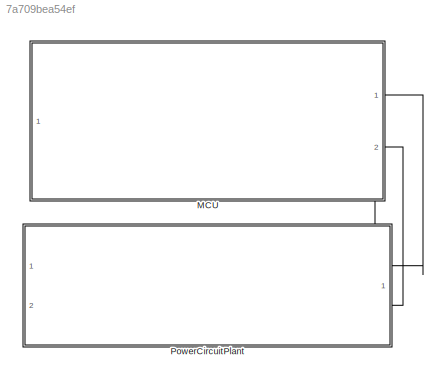
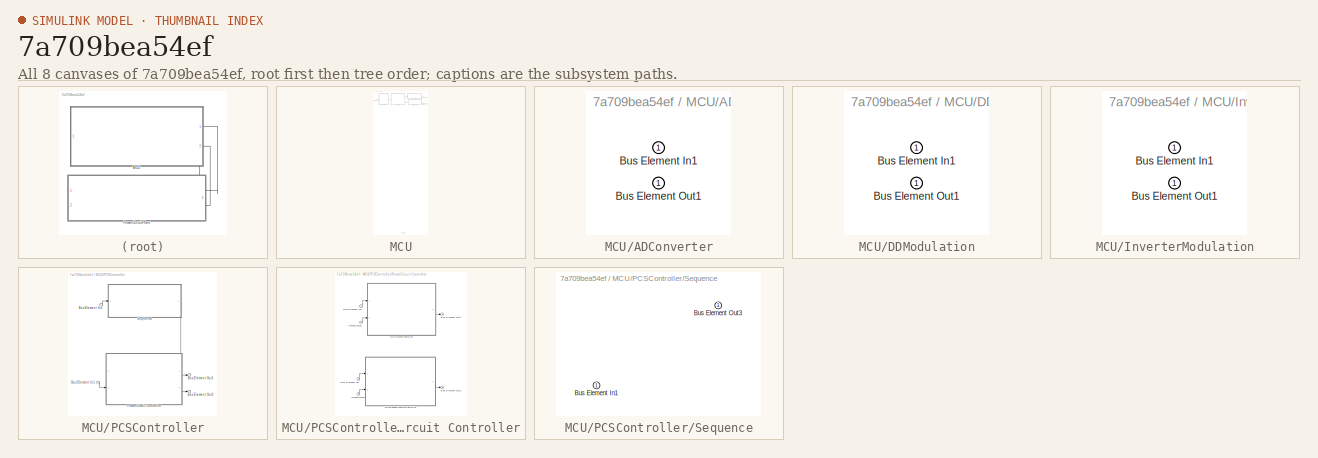
[diagram: thumbnail index - all 8 canvases of the model, root first then tree order]
MODEL slx_7a709bea54ef
KIND model
CONFIG AbsTol = auto
CONFIG EnableMultiTasking = off
CONFIG FixedStep = auto
CONFIG MaxStep = auto
CONFIG MinStep = auto
CONFIG RelTol = 1e-3
CONFIG SampleTimeConstraint = Unconstrained
CONFIG Solver = VariableStepAuto
CONFIG SolverName = VariableStepAuto
CONFIG StartTime = 0.0
CONFIG StopTime = 10.0
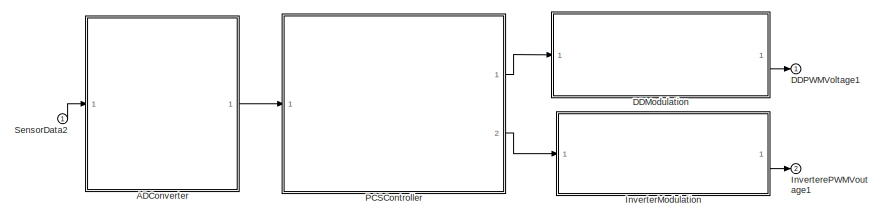
[diagram: MCU - part 1/2, full width, top band]
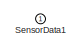
[diagram: MCU - part 2/2, bottom center region]
BLOCK [SubSystem] MCU
  PortSchema = {"entries":[{"content":{"headerSize":26,"margin":15,"minimumSpacing":25,"sides":[{"content":{"connectorIds":["In1"]},"type":"ConnectorPlacement.EquallySpacedRectSide","uuid":"c82d45af-5ea8-4fcc-ae89-844168bd57bc"},{"content":{"connectorIds":["Out1","Out2"],"side":"RIGHT"},"type":"ConnectorPlacement.EquallySpacedRectSide","uuid":"1b4d3c0c-1c26-4c41-b646-659636f5825f"},{"content":{"connectorIds":[],...<+297ch>
  Ports = [1, 2]
  RequestExecContextInheritance = off
BLOCK [SubSystem] MCU/ADConverter
  PortSchema = {"entries":[{"content":{"headerSize":26,"margin":15,"minimumSpacing":25,"sides":[{"content":{"connectorIds":["In1"]},"type":"ConnectorPlacement.EquallySpacedRectSide","uuid":"dd7087ea-aa8d-4c9c-952a-816553f34dda"},{"content":{"connectorIds":["Out1"],"side":"RIGHT"},"type":"ConnectorPlacement.EquallySpacedRectSide","uuid":"25abe4c7-a50d-4c81-9684-6198eef28952"},{"content":{"connectorIds":[],"side":...<+434ch>
  Ports = [1, 1]
  RequestExecContextInheritance = off
BLOCK [Inport] MCU/ADConverter/Bus Element In1
BLOCK [Outport] MCU/ADConverter/Bus Element Out1
BLOCK [SubSystem] MCU/DDModulation
  PortSchema = {"entries":[{"content":{"headerSize":26,"margin":15,"minimumSpacing":25,"sides":[{"content":{"connectorIds":["In1"]},"type":"ConnectorPlacement.EquallySpacedRectSide","uuid":"4a276d0d-1e61-4fe0-a236-83af253ddea3"},{"content":{"connectorIds":["Out1"],"side":"RIGHT"},"type":"ConnectorPlacement.EquallySpacedRectSide","uuid":"2cace6bb-f607-4cf0-88cb-c27cbcb348d0"},{"content":{"connectorIds":[],"side":...<+290ch>
  Ports = [1, 1]
  RequestExecContextInheritance = off
BLOCK [Inport] MCU/DDModulation/Bus Element In1
BLOCK [Outport] MCU/DDModulation/Bus Element Out1
BLOCK [Outport] MCU/DDPWMVoltage1
BLOCK [SubSystem] MCU/InverterModulation
  PortSchema = {"entries":[{"content":{"headerSize":26,"margin":15,"minimumSpacing":25,"sides":[{"content":{"connectorIds":["In1"]},"type":"ConnectorPlacement.EquallySpacedRectSide","uuid":"4a276d0d-1e61-4fe0-a236-83af253ddea3"},{"content":{"connectorIds":["Out1"],"side":"RIGHT"},"type":"ConnectorPlacement.EquallySpacedRectSide","uuid":"2cace6bb-f607-4cf0-88cb-c27cbcb348d0"},{"content":{"connectorIds":[],"side":...<+290ch>
  Ports = [1, 1]
  RequestExecContextInheritance = off
BLOCK [Inport] MCU/InverterModulation/Bus Element In1
BLOCK [Outport] MCU/InverterModulation/Bus Element Out1
BLOCK [Outport] MCU/InverterePWMVoutage1
  Port = 2
BLOCK [SubSystem] MCU/PCSController
  PortSchema = {"entries":[{"content":{"headerSize":26,"margin":15,"minimumSpacing":25,"sides":[{"content":{"connectorIds":["In1"]},"type":"ConnectorPlacement.EquallySpacedRectSide","uuid":"9796e929-be55-42a1-ab24-30bc555d00ea"},{"content":{"connectorIds":["Out1","Out2"],"side":"RIGHT"},"type":"ConnectorPlacement.EquallySpacedRectSide","uuid":"a0e2ec08-d94c-41f4-8573-1de63b77b3ef"},{"content":{"connectorIds":[],...<+441ch>
  Ports = [1, 2]
  RequestExecContextInheritance = off
BLOCK [Inport] MCU/PCSController/Bus Element In1
BLOCK [Inport] MCU/PCSController/Bus Element In2
BLOCK [Outport] MCU/PCSController/Bus Element Out1
BLOCK [Outport] MCU/PCSController/Bus Element Out2
  Port = 2
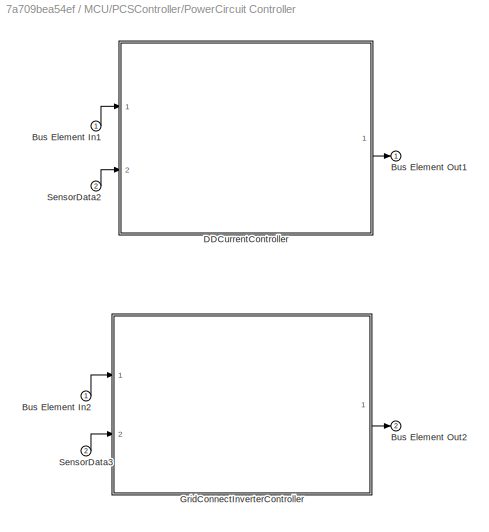
BLOCK [SubSystem] MCU/PCSController/PowerCircuit Controller
  PortSchema = {"entries":[{"content":{"headerSize":26,"margin":15,"minimumSpacing":25,"sides":[{"content":{"connectorIds":["In2"]},"type":"ConnectorPlacement.EquallySpacedRectSide","uuid":"6d5a3475-51d4-4fed-a4a1-1c259683418a"},{"content":{"connectorIds":["Out1","Out2"],"side":"RIGHT"},"type":"ConnectorPlacement.EquallySpacedRectSide","uuid":"687f9b37-d781-487a-8ccc-4d9d98ae2b03"},{"content":{"connectorIds":["I...<+302ch>
  Ports = [2, 2]
  RequestExecContextInheritance = off
BLOCK [Inport] MCU/PCSController/PowerCircuit Controller/Bus Element In1
BLOCK [Inport] MCU/PCSController/PowerCircuit Controller/Bus Element In2
BLOCK [Outport] MCU/PCSController/PowerCircuit Controller/Bus Element Out1
BLOCK [Outport] MCU/PCSController/PowerCircuit Controller/Bus Element Out2
  Port = 2
BLOCK [ModelReference] MCU/PCSController/PowerCircuit Controller/DDCurrentController
  ModelNameDialog = DDCurrentController
  ModelReferenceVersion = 1.1
  PortSchema = {"entries":[{"content":{"headerSize":38,"margin":15,"minimumSpacing":25,"sides":[{"content":{"connectorIds":["In1","In2"]},"type":"ConnectorPlacement.EquallySpacedRectSide","uuid":"9796e929-be55-42a1-ab24-30bc555d00ea"},{"content":{"connectorIds":["Out1"],"side":"RIGHT"},"type":"ConnectorPlacement.EquallySpacedRectSide","uuid":"a0e2ec08-d94c-41f4-8573-1de63b77b3ef"},{"content":{"connectorIds":[],"...<+296ch>
  Ports = [2, 1]
BLOCK [ModelReference] MCU/PCSController/PowerCircuit Controller/GridConnectInverterController
  ModelNameDialog = GridConnectInverterController
  ModelReferenceVersion = 1.1
  PortSchema = {"entries":[{"content":{"headerSize":38,"margin":15,"minimumSpacing":25,"sides":[{"content":{"connectorIds":["In1","In2"]},"type":"ConnectorPlacement.EquallySpacedRectSide","uuid":"9796e929-be55-42a1-ab24-30bc555d00ea"},{"content":{"connectorIds":["Out1"],"side":"RIGHT"},"type":"ConnectorPlacement.EquallySpacedRectSide","uuid":"a0e2ec08-d94c-41f4-8573-1de63b77b3ef"},{"content":{"connectorIds":[],"...<+296ch>
  Ports = [2, 1]
BLOCK [Inport] MCU/PCSController/PowerCircuit Controller/SensorData2
  Port = 2
BLOCK [Inport] MCU/PCSController/PowerCircuit Controller/SensorData3
  Port = 2
BLOCK [SubSystem] MCU/PCSController/Sequence
  PortSchema = {"entries":[{"content":{"headerSize":26,"margin":15,"minimumSpacing":25,"sides":[{"content":{"connectorIds":["In1"]},"type":"ConnectorPlacement.EquallySpacedRectSide","uuid":"9796e929-be55-42a1-ab24-30bc555d00ea"},{"content":{"connectorIds":[],"side":"RIGHT"},"type":"ConnectorPlacement.EquallySpacedRectSide","uuid":"a0e2ec08-d94c-41f4-8573-1de63b77b3ef"},{"content":{"connectorIds":[],"side":"TOP"}...<+434ch>
  Ports = [1, 1]
  RequestExecContextInheritance = off
BLOCK [Inport] MCU/PCSController/Sequence/Bus Element In1
BLOCK [Outport] MCU/PCSController/Sequence/Bus Element Out3
BLOCK [Inport] MCU/SensorData1
BLOCK [Inport] MCU/SensorData2
BLOCK [ModelReference] PowerCircuitPlant
  ModelNameDialog = PowerCircuitPlant
  ModelReferenceVersion = 1.26
  PortSchema = {"entries":[{"content":{"headerSize":38,"margin":15,"minimumSpacing":25,"sides":[{"content":{"connectorIds":["Out1"]},"type":"ConnectorPlacement.EquallySpacedRectSide","uuid":"9796e929-be55-42a1-ab24-30bc555d00ea"},{"content":{"connectorIds":["In1","In2"],"side":"RIGHT"},"type":"ConnectorPlacement.EquallySpacedRectSide","uuid":"a0e2ec08-d94c-41f4-8573-1de63b77b3ef"},{"content":{"connectorIds":[],"...<+296ch>
  Ports = [2, 1]
LINE MCU/ADConverter:1 -> MCU/PCSController:1
LINE MCU/DDModulation:1 -> MCU/DDPWMVoltage1:1
LINE MCU/InverterModulation:1 -> MCU/InverterePWMVoutage1:1
LINE MCU/PCSController/Bus Element In1:1 -> MCU/PCSController/PowerCircuit Controller:2
LINE MCU/PCSController/Bus Element In2:1 -> MCU/PCSController/Sequence:1
LINE MCU/PCSController/PowerCircuit Controller/Bus Element In1:1 -> MCU/PCSController/PowerCircuit Controller/DDCurrentController:1
LINE MCU/PCSController/PowerCircuit Controller/Bus Element In2:1 -> MCU/PCSController/PowerCircuit Controller/GridConnectInverterController:1
LINE MCU/PCSController/PowerCircuit Controller/DDCurrentController:1 -> MCU/PCSController/PowerCircuit Controller/Bus Element Out1:1
LINE MCU/PCSController/PowerCircuit Controller/GridConnectInverterController:1 -> MCU/PCSController/PowerCircuit Controller/Bus Element Out2:1
LINE MCU/PCSController/PowerCircuit Controller/SensorData2:1 -> MCU/PCSController/PowerCircuit Controller/DDCurrentController:2
LINE MCU/PCSController/PowerCircuit Controller/SensorData3:1 -> MCU/PCSController/PowerCircuit Controller/GridConnectInverterController:2
LINE MCU/PCSController/PowerCircuit Controller:1 -> MCU/PCSController/Bus Element Out1:1
LINE MCU/PCSController/PowerCircuit Controller:2 -> MCU/PCSController/Bus Element Out2:1
LINE MCU/PCSController/Sequence:1 -> MCU/PCSController/PowerCircuit Controller:1
LINE MCU/PCSController:1 -> MCU/DDModulation:1
LINE MCU/PCSController:2 -> MCU/InverterModulation:1
LINE MCU/SensorData2:1 -> MCU/ADConverter:1
LINE MCU:1 -> PowerCircuitPlant:1
LINE MCU:2 -> PowerCircuitPlant:2
LINE PowerCircuitPlant:1 -> MCU:1
